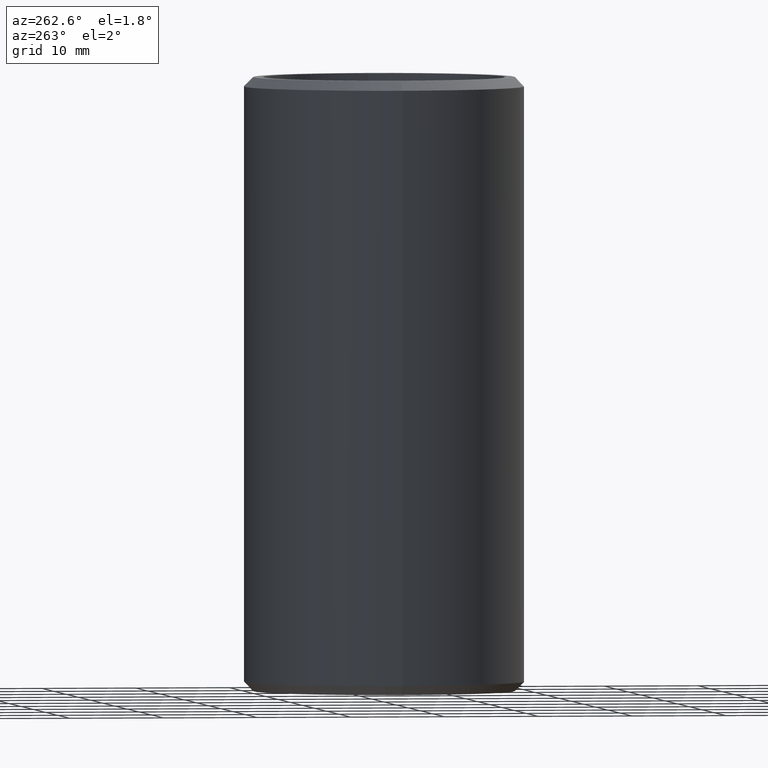
[diagram: clean part render]
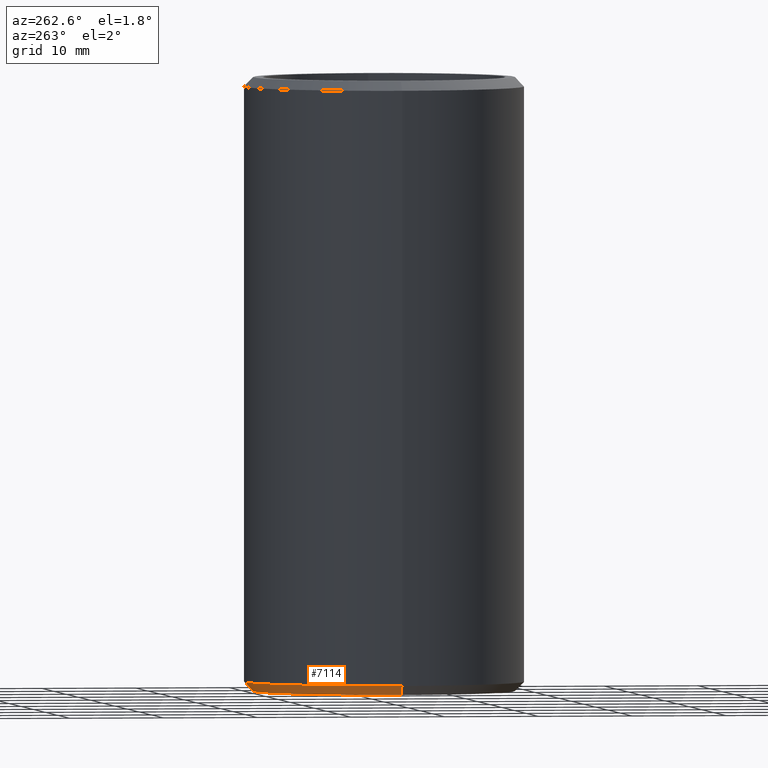
[diagram: same view with one face highlighted and labeled with its STEP entity id]
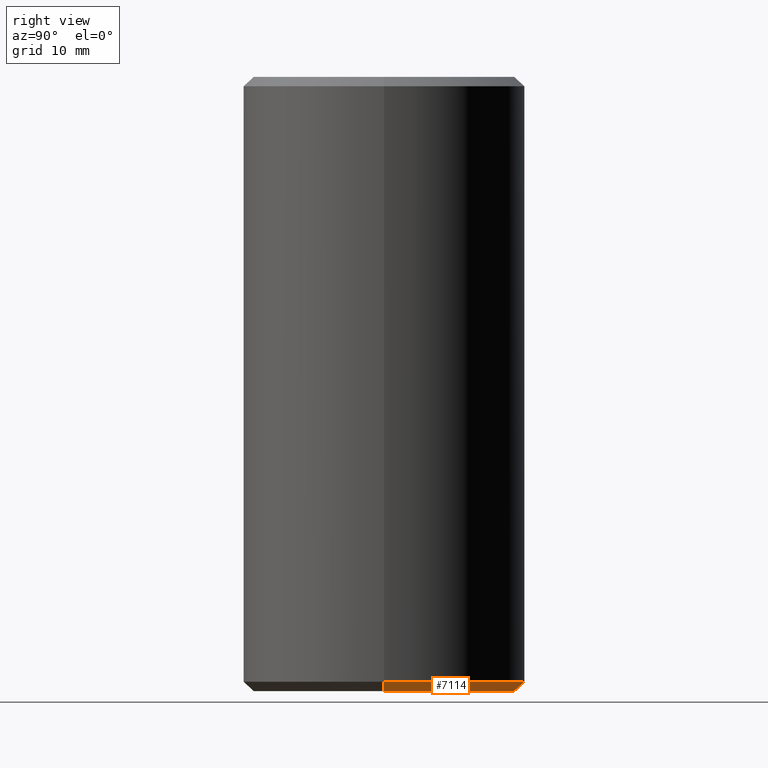
[diagram: same view with one face highlighted and labeled with its STEP entity id]
A machine part, auxiliary view. The second image highlights one B-rep face of the part: STEP entity #7114.
A second angle (right view) of the same face is appended — the face is thin or edge-on in the first view.
In plain terms, the highlighted conical surface has half-angle 45 deg.
Its self-contained STEP definition (entity closure, byte-faithful):
#162 = VERTEX_POINT ( 'NONE', #7058 ) ;
#429 = DIRECTION ( 'NONE',  ( -0.0000000000000000000, -0.0000000000000000000, 1.000000000000000000 ) ) ;
#493 = CARTESIAN_POINT ( 'NONE',  ( 0.0000000000000000000, 0.0000000000000000000, -32.50000000000000000 ) ) ;
#606 = DIRECTION ( 'NONE',  ( -0.0000000000000000000, -0.0000000000000000000, -1.000000000000000000 ) ) ;
#626 = CARTESIAN_POINT ( 'NONE',  ( -14.85000000000000100, 1.818600496733819900E-015, -31.50000000000000000 ) ) ;
#1403 = CARTESIAN_POINT ( 'NONE',  ( 13.85000000000000100, 0.0000000000000000000, -32.50000000000000000 ) ) ;
#1447 = AXIS2_PLACEMENT_3D ( 'NONE', #11948, #429, #6270 ) ;
#2179 = EDGE_CURVE ( 'NONE', #11820, #9610, #9955, .T. ) ;
#2468 = LINE ( 'NONE', #626, #11058 ) ;
#3355 = CONICAL_SURFACE ( 'NONE', #7675, 14.85000000000000100, 0.7853981633974482800 ) ;
#3369 = CIRCLE ( 'NONE', #11145, 13.85000000000000100 ) ;
#3471 = DIRECTION ( 'NONE',  ( 1.000000000000000000, 0.0000000000000000000, 0.0000000000000000000 ) ) ;
#3680 = DIRECTION ( 'NONE',  ( 1.000000000000000000, 0.0000000000000000000, 0.0000000000000000000 ) ) ;
#4386 = ORIENTED_EDGE ( 'NONE', *, *, #7041, .F. ) ;
#4916 = VERTEX_POINT ( 'NONE', #9352 ) ;
#6270 = DIRECTION ( 'NONE',  ( 1.000000000000000000, 0.0000000000000000000, 0.0000000000000000000 ) ) ;
#6445 = EDGE_CURVE ( 'NONE', #4916, #162, #2468, .T. ) ;
#6959 = VECTOR ( 'NONE', #9695, 1000.000000000000100 ) ;
#7019 = ORIENTED_EDGE ( 'NONE', *, *, #6445, .T. ) ;
#7041 = EDGE_CURVE ( 'NONE', #4916, #11820, #3369, .T. ) ;
#7058 = CARTESIAN_POINT ( 'NONE',  ( -14.85000000000000100, 0.0000000000000000000, -31.50000000000000000 ) ) ;
#7114 = ADVANCED_FACE ( 'NONE', ( #12228 ), #3355, .T. ) ;
#7295 = ORIENTED_EDGE ( 'NONE', *, *, #2179, .F. ) ;
#7675 = AXIS2_PLACEMENT_3D ( 'NONE', #9359, #9401, #3680 ) ;
#7789 = EDGE_CURVE ( 'NONE', #9610, #162, #10721, .T. ) ;
#8730 = CARTESIAN_POINT ( 'NONE',  ( 14.85000000000000100, 0.0000000000000000000, -31.50000000000000000 ) ) ;
#9352 = CARTESIAN_POINT ( 'NONE',  ( -13.85000000000000100, 1.757368156776452000E-015, -32.50000000000000000 ) ) ;
#9359 = CARTESIAN_POINT ( 'NONE',  ( 0.0000000000000000000, 0.0000000000000000000, -31.50000000000000000 ) ) ;
#9401 = DIRECTION ( 'NONE',  ( -0.0000000000000000000, -0.0000000000000000000, 1.000000000000000000 ) ) ;
#9610 = VERTEX_POINT ( 'NONE', #10591 ) ;
#9695 = DIRECTION ( 'NONE',  ( 0.7071067811865474600, 0.0000000000000000000, 0.7071067811865474600 ) ) ;
#9955 = LINE ( 'NONE', #8730, #6959 ) ;
#10142 = EDGE_LOOP ( 'NONE', ( #4386, #7019, #12082, #7295 ) ) ;
#10591 = CARTESIAN_POINT ( 'NONE',  ( 14.85000000000000100, 1.818600496733819900E-015, -31.50000000000000000 ) ) ;
#10721 = CIRCLE ( 'NONE', #1447, 14.85000000000000100 ) ;
#11058 = VECTOR ( 'NONE', #12111, 1000.000000000000100 ) ;
#11145 = AXIS2_PLACEMENT_3D ( 'NONE', #493, #606, #3471 ) ;
#11820 = VERTEX_POINT ( 'NONE', #1403 ) ;
#11948 = CARTESIAN_POINT ( 'NONE',  ( 0.0000000000000000000, 0.0000000000000000000, -31.50000000000000000 ) ) ;
#12082 = ORIENTED_EDGE ( 'NONE', *, *, #7789, .F. ) ;
#12111 = DIRECTION ( 'NONE',  ( -0.7071067811865474600, 8.659560562354932900E-017, 0.7071067811865474600 ) ) ;
#12228 = FACE_OUTER_BOUND ( 'NONE', #10142, .T. ) ;